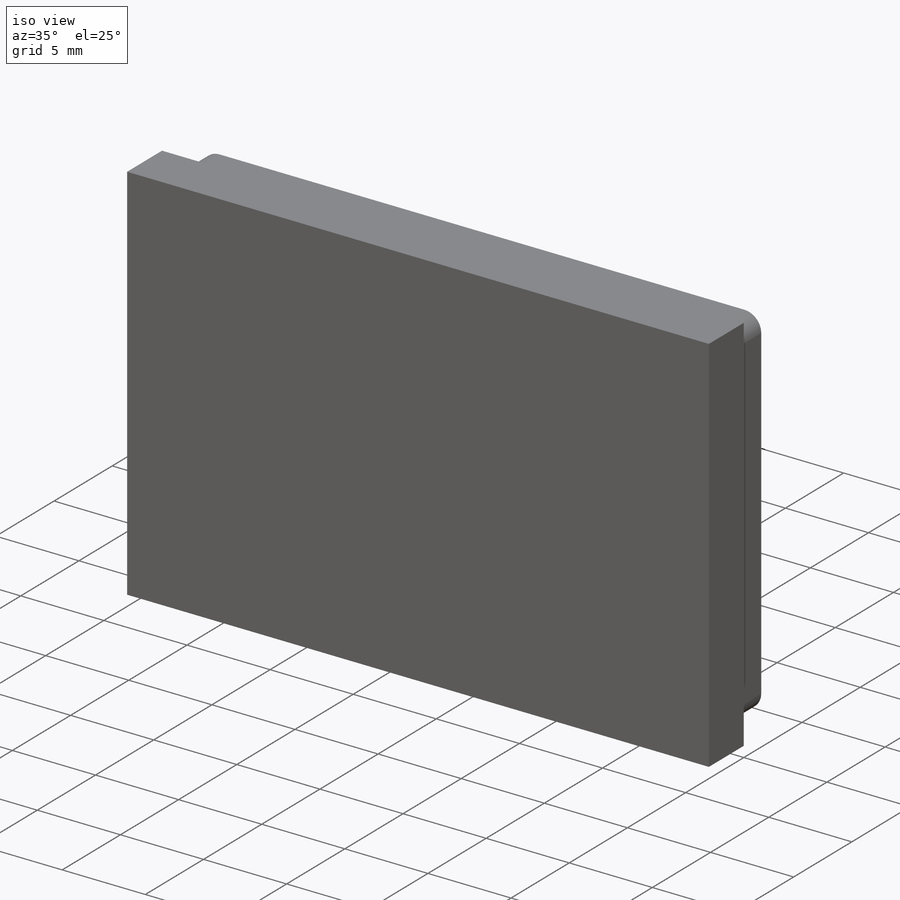
[diagram: iso view]
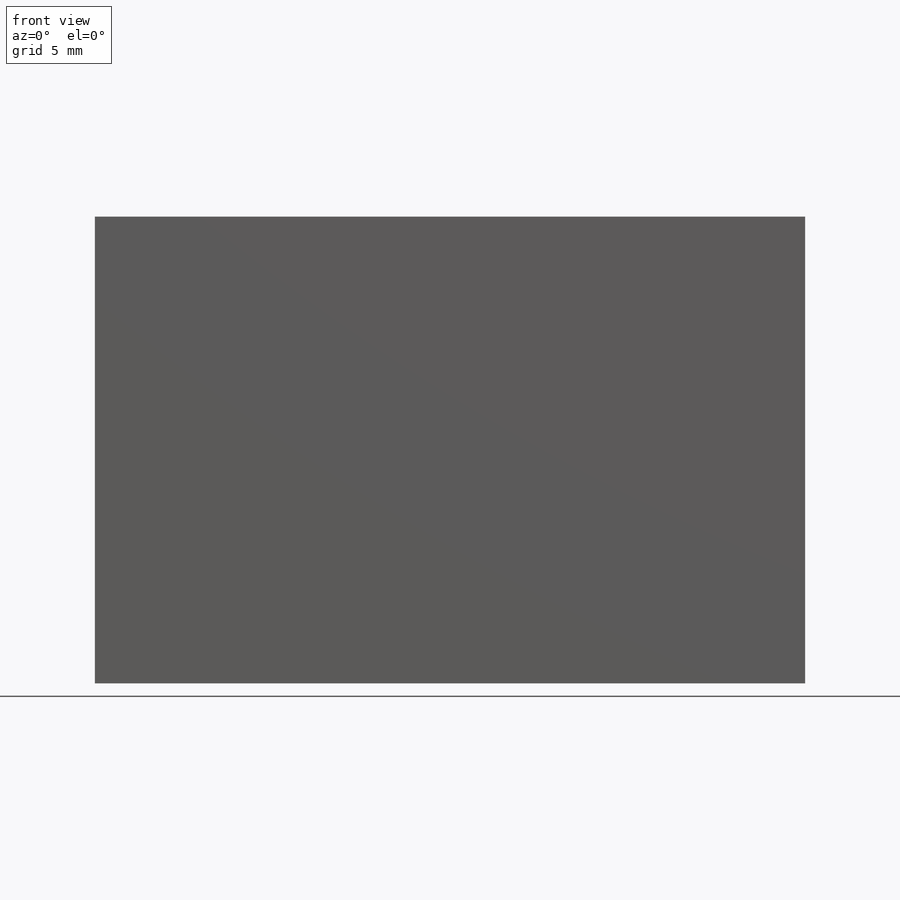
[diagram: front view]
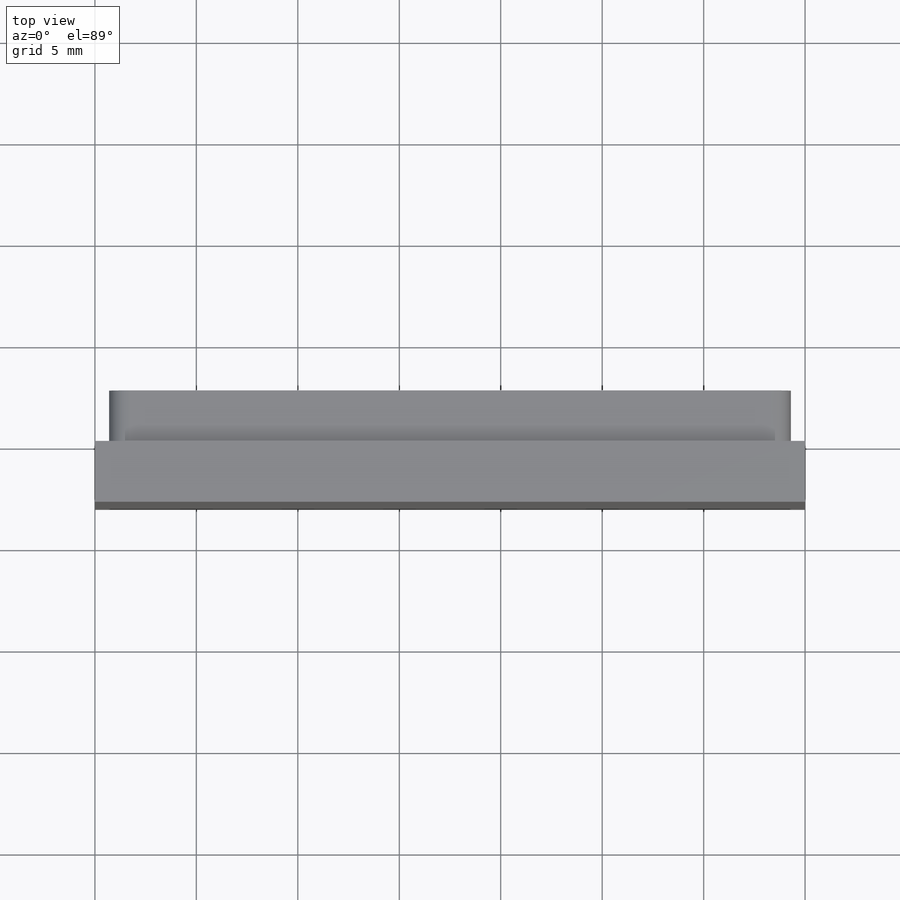
[diagram: top view]
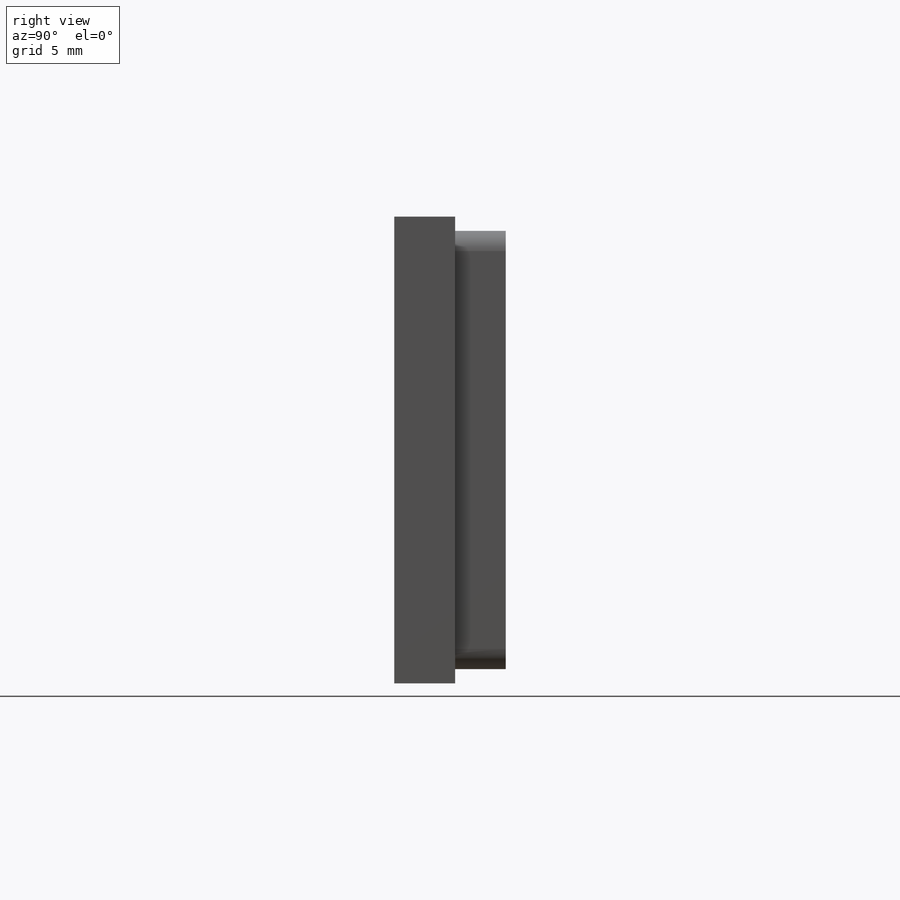
[diagram: right view]
SOLIDWORKS PART (.sldprt)
format: sldprt  version: not decoded by parser v0  size: 290,304 bytes
history: native  units: mm
features: extrude x4, plane x3, material x1, sketch x1 + 3 further entries (+10 scaffold rows collapsed)
feature tree (22):
  scaffold x10  (default folders/planes/origin — collapsed)
  material  "Matériau <non spécifié>"
  plane  "Plan de face"
  plane  "Plan de dessus"
  plane  "Plan de droite"
  sketch  "Esquisse3"  dims[c1.D1=35.0mm c1.D2=~15.998001mm c2.D1=35.0mm c2.D2=23.0mm]
  extrude  "Boss.-Extru.1"  Depth=3mm
  "Esquisse4"
  extrude  "Boss.-Extru.2"  Depth=2.5mm
  "Esquisse5"
  extrude  "Boss.-Extru.3"  Depth=2.5mm
  "Esquisse7"
  extrude  "Boss.-Extru.4"  Depth=2.5mm
decode coverage: 5 of 5 modeling features carry decoded parameters; 3 rows unclassified (native names shown)
note: ~ marks probable driven/reference dimensions
note: suppression state not decoded; provenance and decode notes live in map.json
